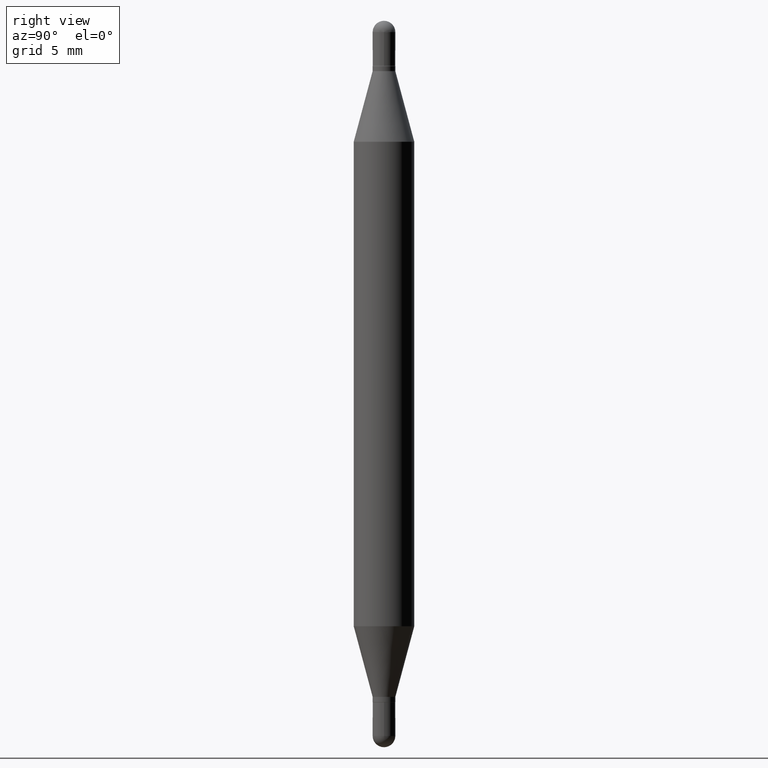
[diagram: clean part render]
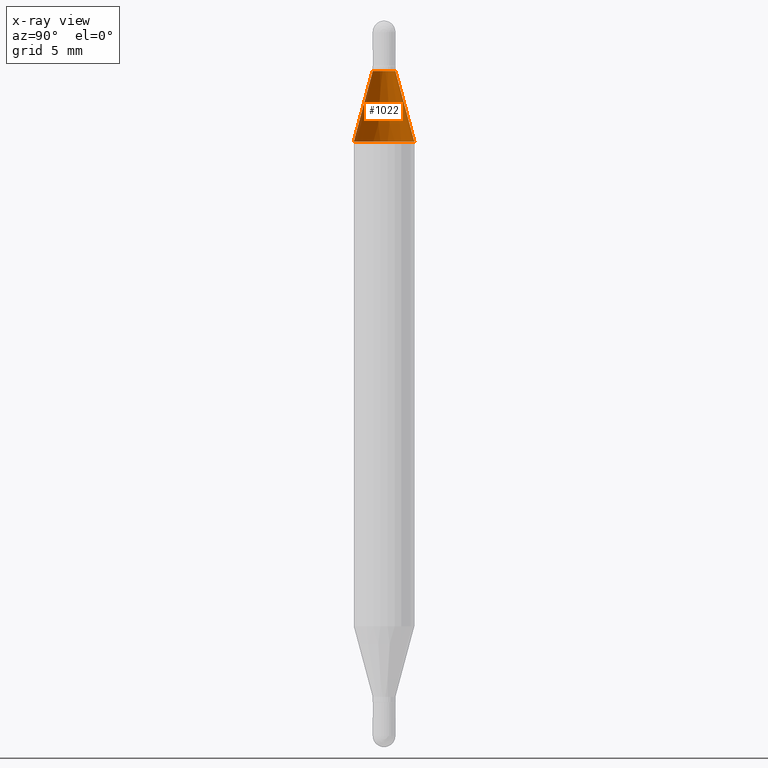
[diagram: x-ray — body ghosted, one internal face saturated and labeled with its STEP entity id]
A machine part, right view, then the same camera in x-ray: the body is ghosted and one INTERNAL B-rep face — a face not visible from any outside direction — is saturated and labeled: STEP entity #1022.
In plain terms, the highlighted conical surface has half-angle 15 deg.
Its self-contained STEP definition (entity closure, byte-faithful):
#15 = CIRCLE ( 'NONE', #912, 0.02344999999999965168 ) ;
#37 = AXIS2_PLACEMENT_3D ( 'NONE', #922, #223, #636 ) ;
#69 = CARTESIAN_POINT ( 'NONE',  ( -1.637504747917063431E-16, -0.02345000000000002291, -0.1039999999999999536 ) ) ;
#79 = VECTOR ( 'NONE', #570, 39.37007874015748143 ) ;
#145 = EDGE_CURVE ( 'NONE', #581, #884, #792, .T. ) ;
#160 = CARTESIAN_POINT ( 'NONE',  ( -4.364351673553610517E-16, -0.06250000000000087430, -0.2497365840355651456 ) ) ;
#175 = CARTESIAN_POINT ( 'NONE',  ( 3.414017849035659863E-29, -3.705747078021827002E-16, -0.1040000000000000369 ) ) ;
#222 = EDGE_CURVE ( 'NONE', #665, #649, #15, .T. ) ;
#223 = DIRECTION ( 'NONE',  ( 2.445571525097176627E-29, 3.479761566306266964E-15, 1.000000000000000000 ) ) ;
#239 = CONICAL_SURFACE ( 'NONE', #1003, 0.02344999999999965168, 0.2617993877991505736 ) ;
#287 = LINE ( 'NONE', #1076, #851 ) ;
#305 = DIRECTION ( 'NONE',  ( -2.445571525097176627E-29, -3.479761566306266964E-15, -1.000000000000000000 ) ) ;
#324 = DIRECTION ( 'NONE',  ( 1.775627540710967075E-15, 0.2588190451025184635, -0.9659258262890689783 ) ) ;
#370 = ORIENTED_EDGE ( 'NONE', *, *, #222, .F. ) ;
#378 = CARTESIAN_POINT ( 'NONE',  ( 1.608786780477752056E-16, 0.02344999999999928045, -0.1040000000000001201 ) ) ;
#381 = FACE_OUTER_BOUND ( 'NONE', #530, .T. ) ;
#408 = CARTESIAN_POINT ( 'NONE',  ( -1.637504747917063431E-16, -0.02345000000000002291, -0.1039999999999999536 ) ) ;
#421 = DIRECTION ( 'NONE',  ( -6.982962677686265133E-15, -1.000000000000000000, 3.640522379616609463E-15 ) ) ;
#486 = LINE ( 'NONE', #408, #79 ) ;
#530 = EDGE_LOOP ( 'NONE', ( #370, #857, #1017, #614 ) ) ;
#570 = DIRECTION ( 'NONE',  ( -1.807323732225332111E-15, -0.2588190451025252359, -0.9659258262890670910 ) ) ;
#581 = VERTEX_POINT ( 'NONE', #732 ) ;
#614 = ORIENTED_EDGE ( 'NONE', *, *, #1104, .F. ) ;
#636 = DIRECTION ( 'NONE',  ( -6.982962677686265922E-15, -1.000000000000000000, 3.278217592397115862E-15 ) ) ;
#639 = DIRECTION ( 'NONE',  ( -6.982962677686265133E-15, -1.000000000000000000, 3.640522379616609463E-15 ) ) ;
#649 = VERTEX_POINT ( 'NONE', #69 ) ;
#665 = VERTEX_POINT ( 'NONE', #378 ) ;
#718 = CARTESIAN_POINT ( 'NONE',  ( 3.414017849035659863E-29, -3.705747078021827002E-16, -0.1040000000000000369 ) ) ;
#732 = CARTESIAN_POINT ( 'NONE',  ( 4.287811248607512417E-16, 0.06249999999999911876, -0.2497365840355655620 ) ) ;
#792 = CIRCLE ( 'NONE', #37, 0.06250000000000000000 ) ;
#838 = DIRECTION ( 'NONE',  ( 2.445571525097176627E-29, 3.479761566306266964E-15, 1.000000000000000000 ) ) ;
#847 = EDGE_CURVE ( 'NONE', #665, #581, #287, .T. ) ;
#851 = VECTOR ( 'NONE', #324, 39.37007874015748854 ) ;
#857 = ORIENTED_EDGE ( 'NONE', *, *, #847, .T. ) ;
#884 = VERTEX_POINT ( 'NONE', #160 ) ;
#912 = AXIS2_PLACEMENT_3D ( 'NONE', #175, #838, #421 ) ;
#922 = CARTESIAN_POINT ( 'NONE',  ( 3.057608608953349206E-29, -8.777032717339053700E-16, -0.2497365840355653399 ) ) ;
#1003 = AXIS2_PLACEMENT_3D ( 'NONE', #718, #305, #639 ) ;
#1017 = ORIENTED_EDGE ( 'NONE', *, *, #145, .T. ) ;
#1022 = ADVANCED_FACE ( 'NONE', ( #381 ), #239, .T. ) ;
#1076 = CARTESIAN_POINT ( 'NONE',  ( 1.608786780477741210E-16, 0.02344999999999928045, -0.1040000000000001201 ) ) ;
#1104 = EDGE_CURVE ( 'NONE', #649, #884, #486, .T. ) ;